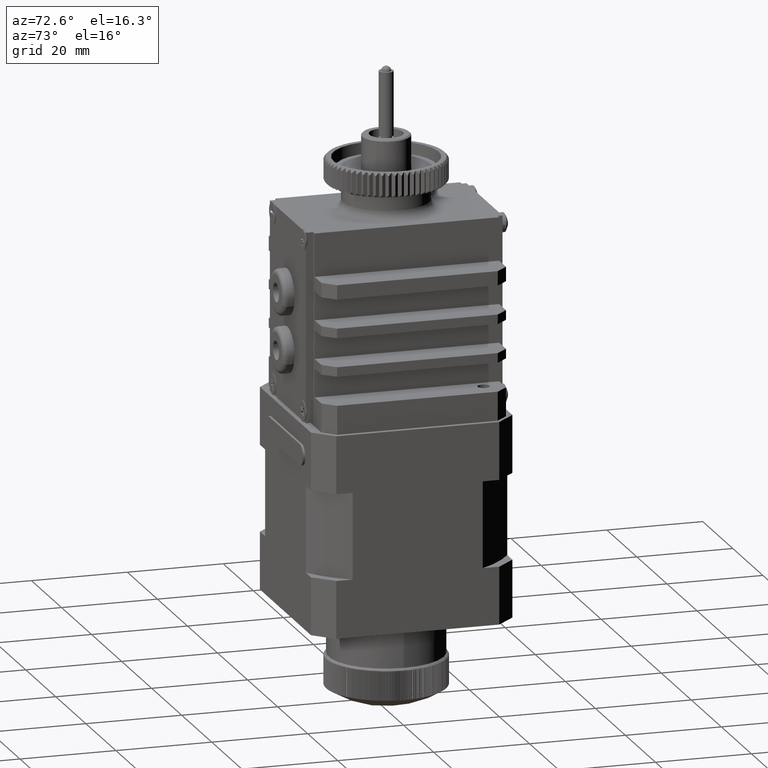
[diagram: clean part render]
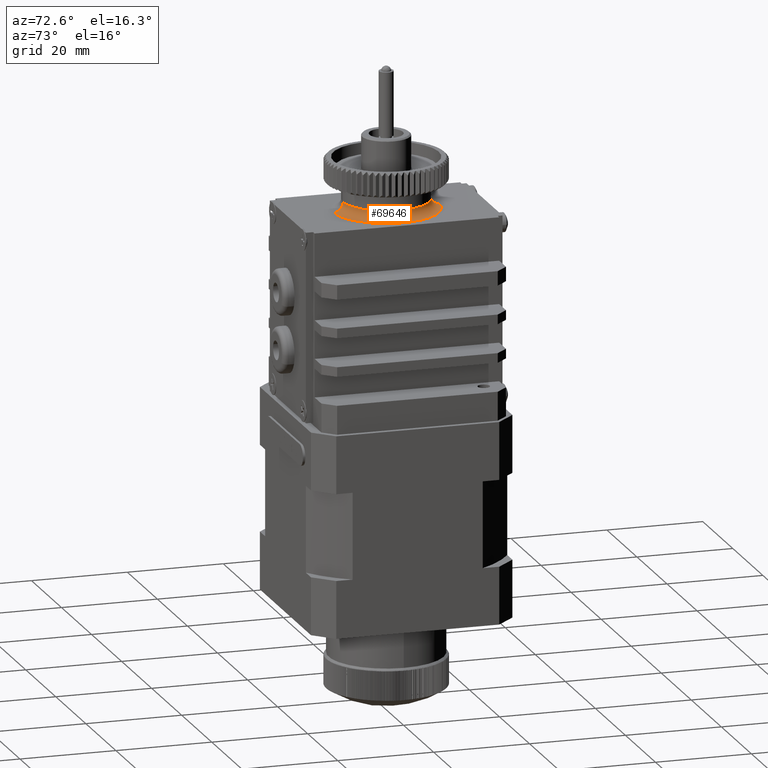
[diagram: same view with one face highlighted and labeled with its STEP entity id]
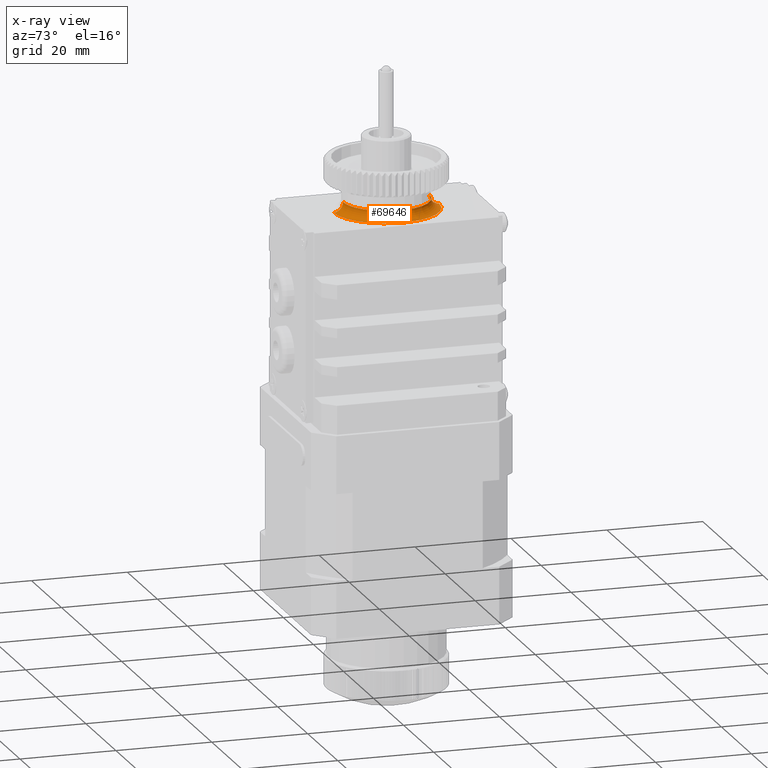
[diagram: x-ray of the same camera — body ghosted, the highlighted face saturated]
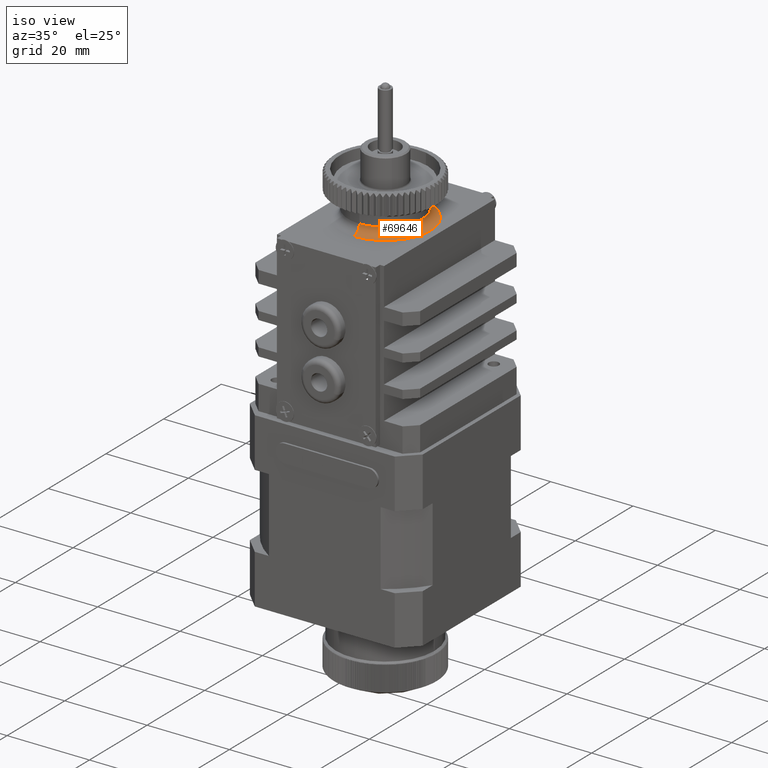
[diagram: same view with one face highlighted and labeled with its STEP entity id]
A machine part, auxiliary view. The second image highlights one B-rep face of the part: STEP entity #69646.
The next image is the same camera in x-ray: the body ghosted, the highlighted face saturated — about 0% of this face is hidden behind the body in this view.
A second angle (iso view) of the same face is appended — the face is thin or edge-on in the first view.
In plain terms, the highlighted toroidal blend (fillet) surface has major radius 11 mm and minor (blend) radius 2 mm.
Its self-contained STEP definition (entity closure, byte-faithful):
#69646 = ADVANCED_FACE ( 'NONE', ( #72297 ), #72368, .F. ) ;
#69648 = EDGE_LOOP ( 'NONE', ( #69743, #69769, #69774, #69650 ) ) ;
#69650 = ORIENTED_EDGE ( 'NONE', *, *, #71192, .F. ) ;
#69741 = EDGE_CURVE ( 'NONE', #71322, #71320, #72534, .T. ) ;
#69743 = ORIENTED_EDGE ( 'NONE', *, *, #71294, .F. ) ;
#69769 = ORIENTED_EDGE ( 'NONE', *, *, #69741, .F. ) ;
#69774 = ORIENTED_EDGE ( 'NONE', *, *, #71304, .T. ) ;
#71192 = EDGE_CURVE ( 'NONE', #71196, #71194, #78003, .T. ) ;
#71194 = VERTEX_POINT ( 'NONE', #77994 ) ;
#71196 = VERTEX_POINT ( 'NONE', #77993 ) ;
#71294 = EDGE_CURVE ( 'NONE', #71320, #71196, #78298, .T. ) ;
#71304 = EDGE_CURVE ( 'NONE', #71322, #71194, #78401, .T. ) ;
#71320 = VERTEX_POINT ( 'NONE', #78437 ) ;
#71322 = VERTEX_POINT ( 'NONE', #78436 ) ;
#72297 = FACE_OUTER_BOUND ( 'NONE', #69648, .T. ) ;
#72362 = DIRECTION ( 'NONE',  ( 3.122799484484876400E-032, 1.000000000000000000, 1.224606353822377300E-016 ) ) ;
#72364 = DIRECTION ( 'NONE',  ( -2.550043509685906900E-016, 1.224606353822377300E-016, -1.000000000000000000 ) ) ;
#72366 = AXIS2_PLACEMENT_3D ( 'NONE', #72372, #72364, #72362 ) ;
#72368 = TOROIDAL_SURFACE ( 'NONE', #72366, 0.4330708661417322900, 0.07874015748031496000 ) ;
#72372 = CARTESIAN_POINT ( 'NONE',  ( -1.957247176652272800, -0.8103322504748558000, 1.397005394313229500 ) ) ;
#72528 = DIRECTION ( 'NONE',  ( 0.0000000000000000000, 1.000000000000000000, 0.0000000000000000000 ) ) ;
#72530 = DIRECTION ( 'NONE',  ( -2.550043509685906900E-016, 1.224606353822377300E-016, -1.000000000000000000 ) ) ;
#72532 = CARTESIAN_POINT ( 'NONE',  ( -1.957247176652272800, -0.8103322504748558000, 1.318265236832914900 ) ) ;
#72533 = AXIS2_PLACEMENT_3D ( 'NONE', #72532, #72530, #72528 ) ;
#72534 = CIRCLE ( 'NONE', #72533, 0.4330708661417322900 ) ;
#77993 = CARTESIAN_POINT ( 'NONE',  ( -1.957247176652272500, -1.164662959136273200, 1.397005394313229500 ) ) ;
#77994 = CARTESIAN_POINT ( 'NONE',  ( -1.957247176652272800, -0.4560015418134385500, 1.397005394313229500 ) ) ;
#77995 = DIRECTION ( 'NONE',  ( 0.0000000000000000000, 1.000000000000000000, 0.0000000000000000000 ) ) ;
#77998 = DIRECTION ( 'NONE',  ( 2.550043509685906900E-016, -1.224606353822377300E-016, 1.000000000000000000 ) ) ;
#77999 = CARTESIAN_POINT ( 'NONE',  ( -1.957247176652272800, -0.8103322504748558000, 1.397005394313229500 ) ) ;
#78001 = AXIS2_PLACEMENT_3D ( 'NONE', #77999, #77998, #77995 ) ;
#78003 = CIRCLE ( 'NONE', #78001, 0.3543307086614173000 ) ;
#78290 = CARTESIAN_POINT ( 'NONE',  ( -1.957247176652272800, -0.3772613843331235600, 1.397005394313229500 ) ) ;
#78293 = DIRECTION ( 'NONE',  ( 0.0000000000000000000, 1.000000000000000000, 0.0000000000000000000 ) ) ;
#78294 = DIRECTION ( 'NONE',  ( 1.000000000000000000, 3.774649863508283700E-016, -2.550043509685906400E-016 ) ) ;
#78295 = CARTESIAN_POINT ( 'NONE',  ( -1.957247176652272500, -1.243403116616588200, 1.397005394313229500 ) ) ;
#78296 = AXIS2_PLACEMENT_3D ( 'NONE', #78295, #78294, #78293 ) ;
#78298 = CIRCLE ( 'NONE', #78296, 0.07874015748031502900 ) ;
#78397 = DIRECTION ( 'NONE',  ( 0.0000000000000000000, 0.0000000000000000000, 1.000000000000000000 ) ) ;
#78398 = DIRECTION ( 'NONE',  ( -1.000000000000000000, -2.550043509685906400E-016, 2.550043509685906400E-016 ) ) ;
#78400 = AXIS2_PLACEMENT_3D ( 'NONE', #78290, #78398, #78397 ) ;
#78401 = CIRCLE ( 'NONE', #78400, 0.07874015748031502900 ) ;
#78436 = CARTESIAN_POINT ( 'NONE',  ( -1.957247176652272800, -0.3772613843331235600, 1.318265236832914900 ) ) ;
#78437 = CARTESIAN_POINT ( 'NONE',  ( -1.957247176652272500, -1.243403116616588200, 1.318265236832914900 ) ) ;